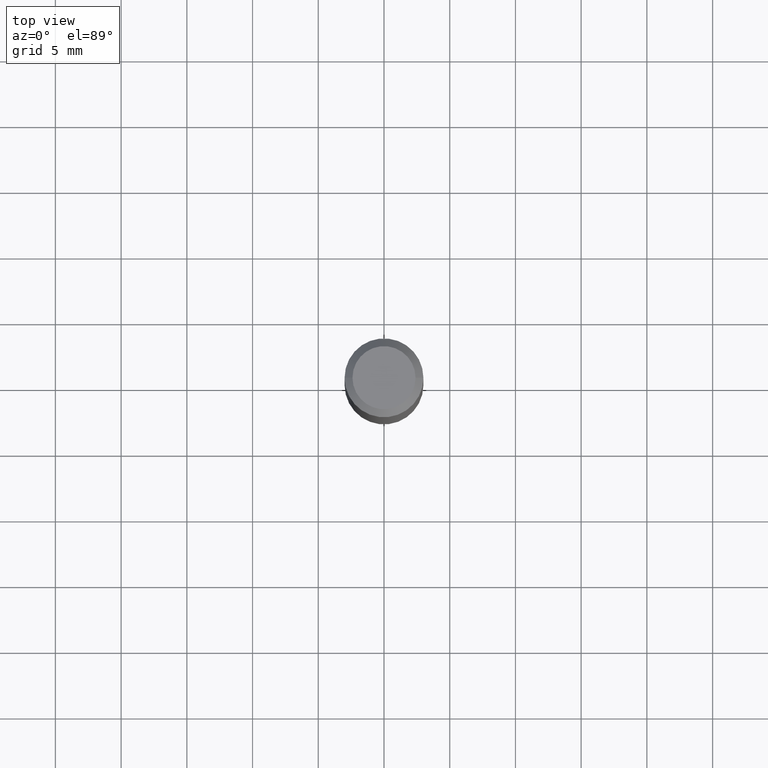
[diagram: clean part render]
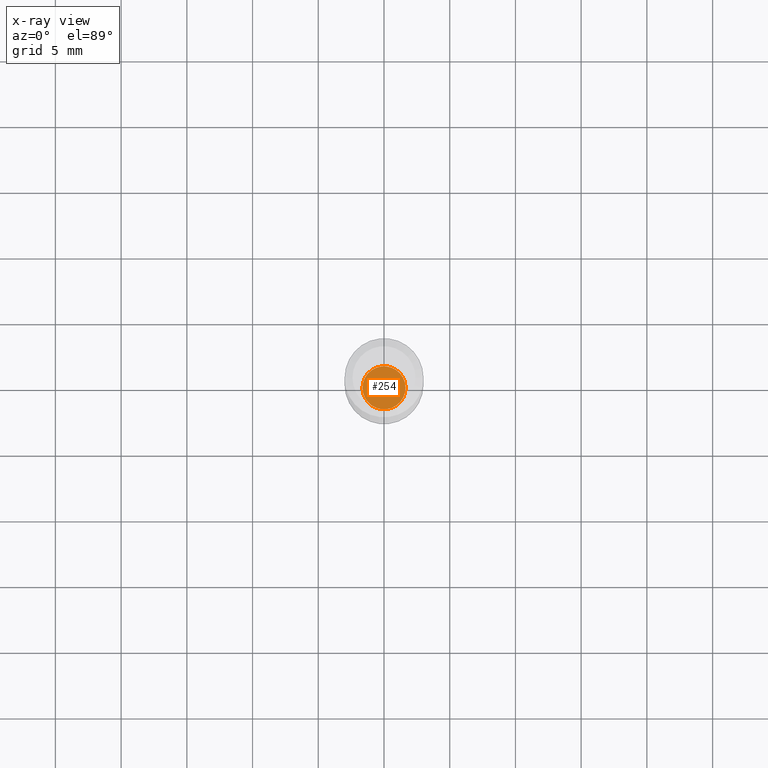
[diagram: x-ray — body ghosted, one internal face saturated and labeled with its STEP entity id]
A machine part, top view, then the same camera in x-ray: the body is ghosted and one INTERNAL B-rep face — a face not visible from any outside direction — is saturated and labeled: STEP entity #254.
In plain terms, the highlighted planar face has unit normal (-0, 0, 1).
Its self-contained STEP definition (entity closure, byte-faithful):
#18 = EDGE_LOOP ( 'NONE', ( #489, #118 ) ) ;
#48 = AXIS2_PLACEMENT_3D ( 'NONE', #276, #399, #92 ) ;
#86 = CARTESIAN_POINT ( 'NONE',  ( 4.282994067152647543E-29, -6.114980416849884881E-15, -1.751399999999999846 ) ) ;
#88 = VERTEX_POINT ( 'NONE', #234 ) ;
#92 = DIRECTION ( 'NONE',  ( 1.000000000000000000, -6.982962677686259611E-15, 0.000000000000000000 ) ) ;
#112 = AXIS2_PLACEMENT_3D ( 'NONE', #464, #153, #302 ) ;
#114 = CIRCLE ( 'NONE', #48, 0.06444999999999999341 ) ;
#118 = ORIENTED_EDGE ( 'NONE', *, *, #194, .F. ) ;
#153 = DIRECTION ( 'NONE',  ( -2.445468806185136597E-29, 3.491481338843145583E-15, 1.000000000000000000 ) ) ;
#194 = EDGE_CURVE ( 'NONE', #88, #342, #500, .T. ) ;
#198 = DIRECTION ( 'NONE',  ( 1.000000000000000000, -6.982962677686265922E-15, 4.876176775795935793E-29 ) ) ;
#201 = DIRECTION ( 'NONE',  ( -2.438088387897960049E-29, 3.491481338843145188E-15, 1.000000000000000000 ) ) ;
#234 = CARTESIAN_POINT ( 'NONE',  ( -0.06444999999999999341, -5.654386396478389058E-15, -1.751399999999999846 ) ) ;
#254 = ADVANCED_FACE ( 'NONE', ( #425 ), #513, .F. ) ;
#276 = CARTESIAN_POINT ( 'NONE',  ( 4.282994067152647543E-29, -6.114980416849884881E-15, -1.751399999999999846 ) ) ;
#302 = DIRECTION ( 'NONE',  ( 1.000000000000000000, -6.982962677686259611E-15, 0.000000000000000000 ) ) ;
#342 = VERTEX_POINT ( 'NONE', #445 ) ;
#354 = EDGE_CURVE ( 'NONE', #342, #88, #114, .T. ) ;
#399 = DIRECTION ( 'NONE',  ( -2.445468806185136597E-29, 3.491481338843145583E-15, 1.000000000000000000 ) ) ;
#425 = FACE_OUTER_BOUND ( 'NONE', #18, .T. ) ;
#441 = AXIS2_PLACEMENT_3D ( 'NONE', #86, #201, #198 ) ;
#445 = CARTESIAN_POINT ( 'NONE',  ( 0.06444999999999999341, -6.565032361426764278E-15, -1.751399999999999846 ) ) ;
#464 = CARTESIAN_POINT ( 'NONE',  ( 4.282994067152647543E-29, -6.114980416849884881E-15, -1.751399999999999846 ) ) ;
#489 = ORIENTED_EDGE ( 'NONE', *, *, #354, .F. ) ;
#500 = CIRCLE ( 'NONE', #112, 0.06444999999999999341 ) ;
#513 = PLANE ( 'NONE',  #441 ) ;